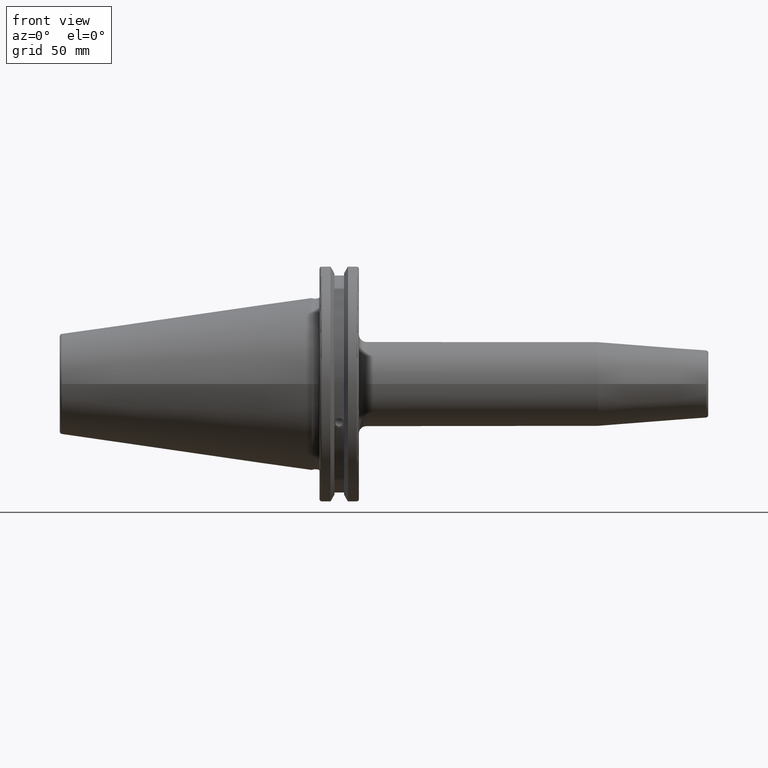
[diagram: clean part render]
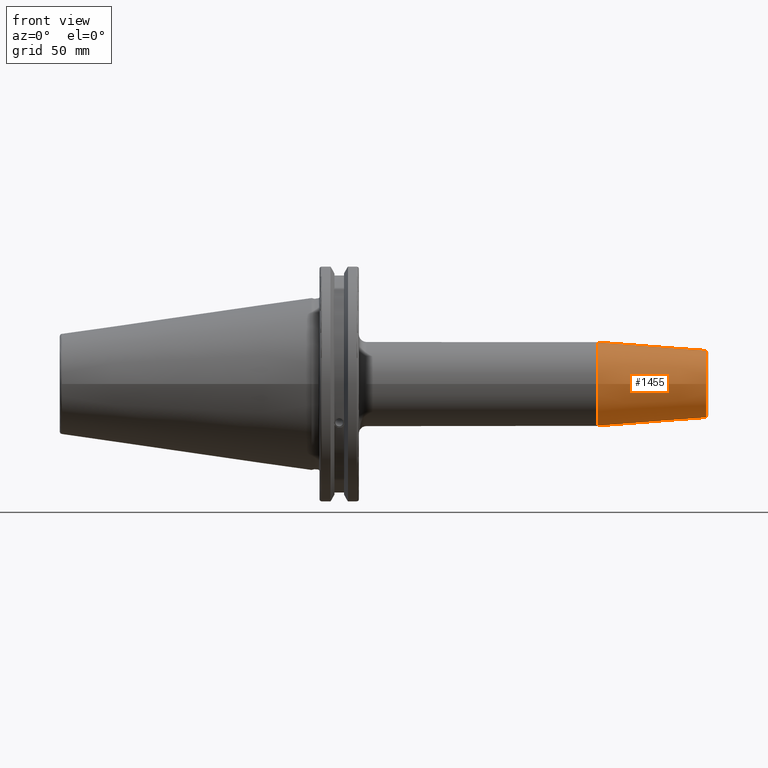
[diagram: same view with one face highlighted and labeled with its STEP entity id]
A machine part, front view. The second image highlights one B-rep face of the part: STEP entity #1455.
In plain terms, the highlighted conical surface has half-angle 4.5 deg.
Its self-contained STEP definition (entity closure, byte-faithful):
#71=CONICAL_SURFACE('',#1573,15.25,0.0785398163397444);
#85=LINE('',#2170,#177);
#177=VECTOR('',#1755,15.25);
#356=FACE_OUTER_BOUND('',#443,.T.);
#443=EDGE_LOOP('',(#1011,#1012,#1013,#1014,#1015));
#551=CIRCLE('',#1571,13.5725268420749);
#552=CIRCLE('',#1572,13.5725268420749);
#553=CIRCLE('',#1574,17.);
#625=VERTEX_POINT('',#2163);
#626=VERTEX_POINT('',#2165);
#627=VERTEX_POINT('',#2169);
#778=EDGE_CURVE('',#625,#626,#551,.T.);
#779=EDGE_CURVE('',#626,#625,#552,.T.);
#780=EDGE_CURVE('',#626,#627,#85,.T.);
#781=EDGE_CURVE('',#627,#627,#553,.T.);
#1011=ORIENTED_EDGE('',*,*,#779,.F.);
#1012=ORIENTED_EDGE('',*,*,#780,.T.);
#1013=ORIENTED_EDGE('',*,*,#781,.T.);
#1014=ORIENTED_EDGE('',*,*,#780,.F.);
#1015=ORIENTED_EDGE('',*,*,#778,.F.);
#1455=ADVANCED_FACE('',(#356),#71,.T.);
#1571=AXIS2_PLACEMENT_3D('',#2166,#1749,#1750);
#1572=AXIS2_PLACEMENT_3D('',#2167,#1751,#1752);
#1573=AXIS2_PLACEMENT_3D('',#2168,#1753,#1754);
#1574=AXIS2_PLACEMENT_3D('',#2171,#1756,#1757);
#1749=DIRECTION('center_axis',(1.,0.,0.));
#1750=DIRECTION('ref_axis',(0.,-1.,3.06161699786838E-17));
#1751=DIRECTION('center_axis',(1.,0.,0.));
#1752=DIRECTION('ref_axis',(0.,-1.,3.06161699786838E-17));
#1753=DIRECTION('center_axis',(-1.,0.,0.));
#1754=DIRECTION('ref_axis',(0.,1.,0.));
#1755=DIRECTION('',(-0.996917333733128,-0.0784590957278445,-9.60846804471006E-18));
#1756=DIRECTION('center_axis',(1.,0.,0.));
#1757=DIRECTION('ref_axis',(0.,0.,-1.));
#2163=CARTESIAN_POINT('',(159.078459095728,-1.66215515534886E-15,13.5725268420749));
#2165=CARTESIAN_POINT('',(159.078459095728,-13.5725268420749,-1.66215515534886E-15));
#2166=CARTESIAN_POINT('Origin',(159.078459095728,0.,-2.07769394418607E-15));
#2167=CARTESIAN_POINT('Origin',(159.078459095728,0.,-2.07769394418607E-15));
#2168=CARTESIAN_POINT('Origin',(137.764141711694,0.,0.));
#2169=CARTESIAN_POINT('',(115.528283423388,-17.,-2.0818995585505E-15));
#2170=CARTESIAN_POINT('',(137.764141711694,-15.25,-1.86758636869971E-15));
#2171=CARTESIAN_POINT('Origin',(115.528283423388,0.,0.));